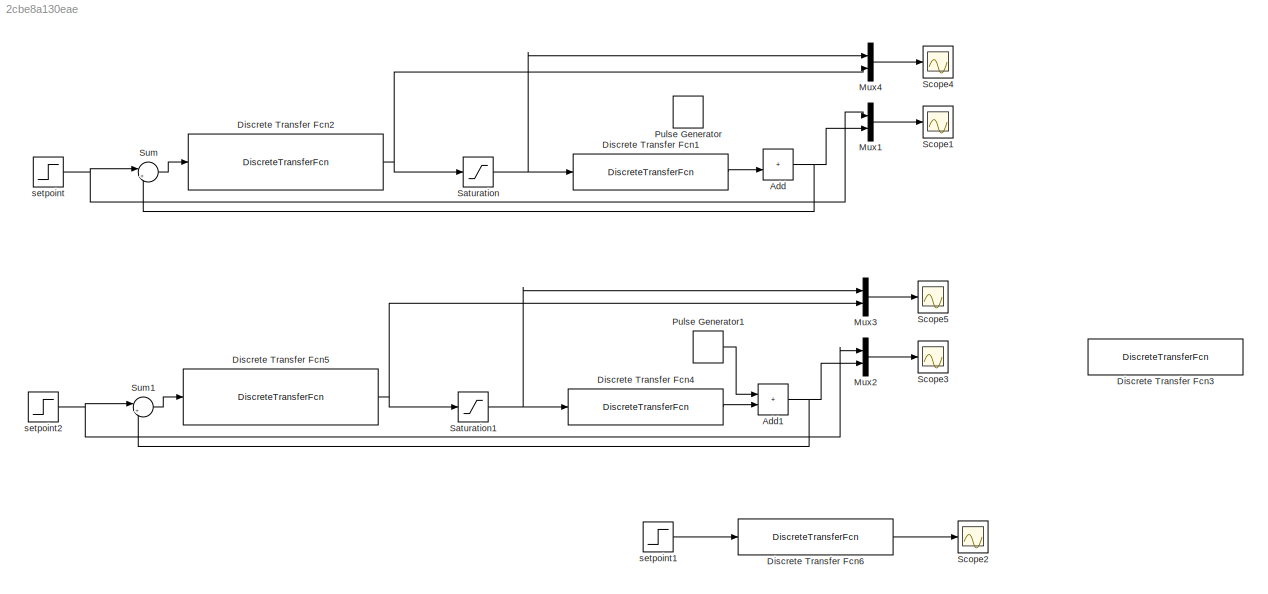
MODEL slx_2cbe8a130eae
KIND model
CONFIG AbsTol = auto
CONFIG EnableMultiTasking = off
CONFIG FixedStep = auto
CONFIG MaxStep = auto
CONFIG MinStep = auto
CONFIG RelTol = 1e-3
CONFIG SampleTimeConstraint = Unconstrained
CONFIG SolverName = VariableStepAuto
CONFIG StartTime = 0.0
CONFIG StopTime = 10
BLOCK [Sum] Add
  IconShape = rectangular
BLOCK [Sum] Add1
  IconShape = rectangular
BLOCK [DiscreteTransferFcn] Discrete Transfer Fcn1
  Denominator = [1,-1.221,0.4574]
  InputPortMap = u0
  Numerator = [0.05661,0]
  SampleTime = 0.1
BLOCK [DiscreteTransferFcn] Discrete Transfer Fcn2
  Denominator = [1 -1 0]
  InputPortMap = u0
  Numerator = [K1 K2 K3]
  SampleTime = 0.031
BLOCK [DiscreteTransferFcn] Discrete Transfer Fcn3
  Denominator = [1,-0.5253,-0.0810]
  InputPortMap = u0
  Numerator = [0.9788, 0 ]
  SampleTime = 0.031
BLOCK [DiscreteTransferFcn] Discrete Transfer Fcn4
  Denominator = [1,-0.5253,-0.0810]
  InputPortMap = u0
  Numerator = [0.9788, 0 ]
  SampleTime = 0.031
BLOCK [DiscreteTransferFcn] Discrete Transfer Fcn5
  Denominator = [1 -1 0]
  InputPortMap = u0
  Numerator = [K1 K2 K3]
  SampleTime = 0.031
BLOCK [DiscreteTransferFcn] Discrete Transfer Fcn6
  Denominator = [1,-1.221,0.4574]
  InputPortMap = u0
  Numerator = [0.05661,0]
  SampleTime = 0.1
BLOCK [Mux] Mux1
  DisplayOption = bar
  Inputs = 2
BLOCK [Mux] Mux2
  DisplayOption = bar
  Inputs = 2
BLOCK [Mux] Mux3
  DisplayOption = bar
  Inputs = 2
BLOCK [Mux] Mux4
  DisplayOption = bar
  Inputs = 2
BLOCK [DiscretePulseGenerator] Pulse Generator
  Amplitude = -1
  Period = 10
  PhaseDelay = 5
  PulseType = Time based
  PulseWidth = 50
BLOCK [DiscretePulseGenerator] Pulse Generator1
  Amplitude = -1
  Period = 10
  PhaseDelay = 5
  PulseType = Time based
  PulseWidth = 50
BLOCK [Saturate] Saturation
  LowerLimit = 0
  UpperLimit = 55
BLOCK [Saturate] Saturation1
  LowerLimit = 0
  UpperLimit = 48
BLOCK [Scope] Scope1
  Floating = off
  NumInputPorts = 1
  ScopeSpecificationString = Simulink.scopes.TimeScopeBlockCfg('CurrentConfiguration', extmgr.ConfigurationSet(extmgr.Configuration('Core','General UI',true),extmgr.Configuration('Core','Source UI',true),extmgr.Configuration('Sources','WiredSimulink',true,'DataLoggingVariableName','ScopeData1'),extmgr.Configuration('Visuals','Time Domain',true,'SerializedDisplays',{struct('MinYLimReal','-1.73188','MaxYLimReal','15.58691','YLa...<+1783ch>
BLOCK [Scope] Scope2
  Floating = off
  NumInputPorts = 1
  ScopeSpecificationString = Simulink.scopes.TimeScopeBlockCfg('CurrentConfiguration', extmgr.ConfigurationSet(extmgr.Configuration('Core','General UI',true),extmgr.Configuration('Core','Source UI',true),extmgr.Configuration('Sources','WiredSimulink',true,'DataLoggingVariableName','ScopeData1'),extmgr.Configuration('Visuals','Time Domain',true,'SerializedDisplays',{struct('MinYLimReal','-1.59208','MaxYLimReal','14.32869','YLa...<+1458ch>
BLOCK [Scope] Scope3
  Floating = off
  NumInputPorts = 1
  ScopeSpecificationString = Simulink.scopes.TimeScopeBlockCfg('CurrentConfiguration', extmgr.ConfigurationSet(extmgr.Configuration('Core','General UI',true),extmgr.Configuration('Core','Source UI',true),extmgr.Configuration('Sources','WiredSimulink',true,'DataLoggingVariableName','ScopeData2'),extmgr.Configuration('Visuals','Time Domain',true,'SerializedDisplays',{struct('MinYLimReal','-3.75','MaxYLimReal','33.75003','YLabel...<+1778ch>
BLOCK [Scope] Scope4
  Floating = off
  NumInputPorts = 1
  ScopeSpecificationString = Simulink.scopes.TimeScopeBlockCfg('CurrentConfiguration', extmgr.ConfigurationSet(extmgr.Configuration('Core','General UI',true),extmgr.Configuration('Core','Source UI',true),extmgr.Configuration('Sources','WiredSimulink',true),extmgr.Configuration('Visuals','Time Domain',true,'SerializedDisplays',{struct('MinYLimReal','-88.79467','MaxYLimReal','175.00546','YLabelReal','','MinYLimMag','0.00000','M...<+1509ch>
BLOCK [Scope] Scope5
  Floating = off
  NumInputPorts = 1
  ScopeSpecificationString = Simulink.scopes.TimeScopeBlockCfg('CurrentConfiguration', extmgr.ConfigurationSet(extmgr.Configuration('Core','General UI',true),extmgr.Configuration('Core','Source UI',true),extmgr.Configuration('Sources','WiredSimulink',true,'DataLoggingVariableName','ScopeData3'),extmgr.Configuration('Visuals','Time Domain',true,'SerializedDisplays',{struct('MinYLimReal','-88.79467','MaxYLimReal','175.00546','Y...<+1548ch>
BLOCK [Sum] Sum
  Inputs = |+-
BLOCK [Sum] Sum1
  Inputs = |+-
BLOCK [Step] setpoint
  After = 10
  SampleTime = 0.1
BLOCK [Step] setpoint1
  After = 50
  SampleTime = 0.1
BLOCK [Step] setpoint2
  After = 30
  SampleTime = 0.031
NET Add1:1 -> Mux2:2, Sum1:2
NET Add:1 -> Mux1:2, Sum:2
LINE Discrete Transfer Fcn1:1 -> Add:2
NET Discrete Transfer Fcn2:1 -> Mux4:2, Saturation:1
LINE Discrete Transfer Fcn4:1 -> Add1:2
NET Discrete Transfer Fcn5:1 -> Mux3:2, Saturation1:1
LINE Discrete Transfer Fcn6:1 -> Scope2:1
LINE Mux1:1 -> Scope1:1
LINE Mux2:1 -> Scope3:1
LINE Mux3:1 -> Scope5:1
LINE Mux4:1 -> Scope4:1
LINE Pulse Generator1:1 -> Add1:1
NET Saturation1:1 -> Discrete Transfer Fcn4:1, Mux3:1
NET Saturation:1 -> Discrete Transfer Fcn1:1, Mux4:1
LINE Sum1:1 -> Discrete Transfer Fcn5:1
LINE Sum:1 -> Discrete Transfer Fcn2:1
LINE setpoint1:1 -> Discrete Transfer Fcn6:1
NET setpoint2:1 -> Mux2:1, Sum1:1
NET setpoint:1 -> Mux1:1, Sum:1
note: NET lines group one-source signal fan-out (src -> all destinations, sorted); 1:1 wires keep LINE
